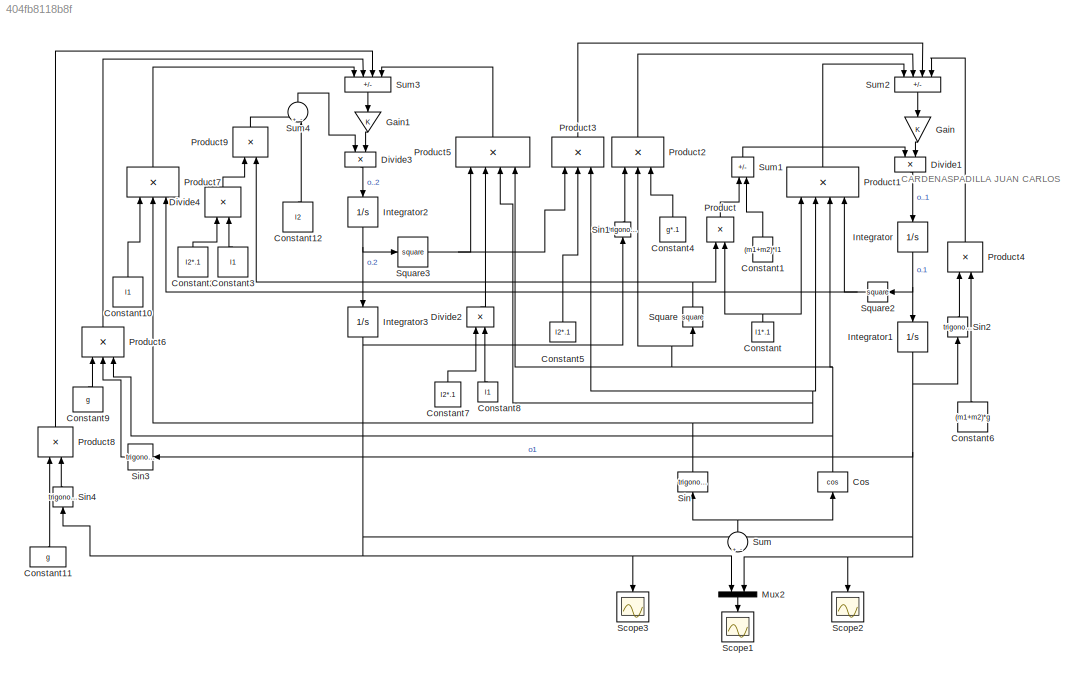
MODEL slx_404fb8118b8f
KIND model
CONFIG AbsTol = auto
CONFIG EnableMultiTasking = off
CONFIG FixedStep = auto
CONFIG MaxStep = auto
CONFIG MinStep = auto
CONFIG RelTol = 1e-3
CONFIG SampleTimeConstraint = Unconstrained
CONFIG SolverName = ode23
CONFIG StartTime = 0.0
CONFIG StopTime = 200
BLOCK [Constant] Constant
  NameLocation = right
  Value = l1*.1
BLOCK [Constant] Constant1
  NameLocation = right
  Value = (m1+m2)*l1
BLOCK [Constant] Constant10
  NameLocation = right
  Value = l1
BLOCK [Constant] Constant11
  NameLocation = right
  Value = g
BLOCK [Constant] Constant12
  NameLocation = right
  Value = l2
BLOCK [Constant] Constant2
  NameLocation = right
  Value = l2*.1
BLOCK [Constant] Constant3
  NameLocation = right
  Value = l1
BLOCK [Constant] Constant4
  NameLocation = right
  Value = g*.1
BLOCK [Constant] Constant5
  NameLocation = right
  Value = l2*.1
BLOCK [Constant] Constant6
  NameLocation = right
  Value = (m1+m2)*g
BLOCK [Constant] Constant7
  NameLocation = right
  Value = l2*.1
BLOCK [Constant] Constant8
  NameLocation = right
  Value = l1
BLOCK [Constant] Constant9
  NameLocation = right
  Value = g
BLOCK [Trigonometry] Cos
  NameLocation = right
  Operator = cos
BLOCK [Product] Divide1
  Inputs = /*
  NameLocation = left
BLOCK [Product] Divide2
  Inputs = */
  NameLocation = right
BLOCK [Product] Divide3
  Inputs = /*
  NameLocation = left
BLOCK [Product] Divide4
  Inputs = */
  NameLocation = right
BLOCK [Gain] Gain
  NameLocation = left
BLOCK [Gain] Gain1
  NameLocation = left
BLOCK [Integrator] Integrator
  NameLocation = left
BLOCK [Integrator] Integrator1
  NameLocation = left
BLOCK [Integrator] Integrator2
  NameLocation = left
BLOCK [Integrator] Integrator3
  InitialCondition = 0.610865
  NameLocation = left
BLOCK [Mux] Mux2
  DisplayOption = bar
  Inputs = 2
  NameLocation = left
BLOCK [Product] Product
  NameLocation = right
BLOCK [Product] Product1
  Inputs = 4
  NameLocation = right
BLOCK [Product] Product2
  Inputs = 3
  NameLocation = right
BLOCK [Product] Product3
  Inputs = 3
  NameLocation = right
BLOCK [Product] Product4
  NameLocation = right
BLOCK [Product] Product5
  Inputs = 4
  NameLocation = right
BLOCK [Product] Product6
  Inputs = 3
  NameLocation = right
BLOCK [Product] Product7
  Inputs = 3
  NameLocation = right
BLOCK [Product] Product8
  NameLocation = right
BLOCK [Product] Product9
  NameLocation = right
BLOCK [Scope] Scope1
  Floating = off
  NameLocation = left
  NumInputPorts = 1
  ScopeSpecificationString = Simulink.scopes.TimeScopeBlockCfg('CurrentConfiguration', extmgr.ConfigurationSet(extmgr.Configuration('Core','General UI',true),extmgr.Configuration('Core','Source UI',true),extmgr.Configuration('Sources','WiredSimulink',true,'DataLoggingVariableName','ScopeData1'),extmgr.Configuration('Visuals','Time Domain',true,'SerializedDisplays',{struct('MinYLimReal','-0.73519','MaxYLimReal','0.76043','YLab...<+1518ch>
BLOCK [Scope] Scope2
  Floating = off
  NameLocation = left
  NumInputPorts = 1
  ScopeSpecificationString = Simulink.scopes.TimeScopeBlockCfg('CurrentConfiguration', extmgr.ConfigurationSet(extmgr.Configuration('Core','General UI',true),extmgr.Configuration('Core','Source UI',true),extmgr.Configuration('Sources','WiredSimulink',true,'DataLoggingVariableName','ScopeData1'),extmgr.Configuration('Visuals','Time Domain',true,'SerializedDisplays',{struct('MinYLimReal','-0.3869','MaxYLimReal','0.3781','YLabel...<+1498ch>
BLOCK [Scope] Scope3
  Floating = off
  NameLocation = left
  NumInputPorts = 1
  ScopeSpecificationString = Simulink.scopes.TimeScopeBlockCfg('CurrentConfiguration', extmgr.ConfigurationSet(extmgr.Configuration('Core','General UI',true),extmgr.Configuration('Core','Source UI',true),extmgr.Configuration('Sources','WiredSimulink',true,'DataLoggingVariableName','ScopeData2'),extmgr.Configuration('Visuals','Time Domain',true,'SerializedDisplays',{struct('MinYLimReal','-0.73519','MaxYLimReal','0.76043','YLab...<+1513ch>
BLOCK [Trigonometry] Sin
  NameLocation = right
BLOCK [Trigonometry] Sin1
  NameLocation = right
BLOCK [Trigonometry] Sin2
  NameLocation = right
BLOCK [Trigonometry] Sin3
  NameLocation = top
BLOCK [Trigonometry] Sin4
  NameLocation = right
BLOCK [Math] Square
  NameLocation = right
  Operator = square
  RndMeth = Zero
  SignedPower = on
BLOCK [Math] Square2
  NameLocation = top
  Operator = square
  RndMeth = Zero
  SignedPower = on
BLOCK [Math] Square3
  Operator = square
  RndMeth = Zero
  SignedPower = on
BLOCK [Sum] Sum
  Inputs = +-
  NameLocation = right
BLOCK [Sum] Sum1
  IconShape = rectangular
  Inputs = +-
  NameLocation = right
BLOCK [Sum] Sum2
  IconShape = rectangular
  Inputs = ---+
  NameLocation = left
BLOCK [Sum] Sum3
  IconShape = rectangular
  Inputs = +-++
  NameLocation = left
BLOCK [Sum] Sum4
  Inputs = +-|
  NameLocation = right
ANNOTATION (root): CARDENASPADILLA JUAN CARLOS
LINE Constant10:1 -> Product7:1
LINE Constant11:1 -> Product8:1
LINE Constant12:1 -> Sum4:2
LINE Constant1:1 -> Sum1:2
LINE Constant2:1 -> Divide4:1
LINE Constant3:1 -> Divide4:2
LINE Constant4:1 -> Product2:3
LINE Constant5:1 -> Product3:2
LINE Constant6:1 -> Product4:2
LINE Constant7:1 -> Divide2:1
LINE Constant8:1 -> Divide2:2
LINE Constant9:1 -> Product6:1
NET Constant:1 -> Product1:1, Product:2
NET Cos:1 -> Product1:3, Product2:2, Product5:4, Product6:3, Square:1
LINE Divide1:1 -> Integrator:1
LINE Divide2:1 -> Product5:2
LINE Divide3:1 -> Integrator2:1
LINE Divide4:1 -> Product9:1
LINE Gain1:1 -> Divide3:2
LINE Gain:1 -> Divide1:2
NET Integrator1:1 -> Mux2:2, Scope2:1, Sin2:1, Sin3:1, Sum:2
NET Integrator2:1 -> Integrator3:1, Square3:1
NET Integrator3:1 -> Mux2:1, Scope3:1, Sin1:1, Sin4:1, Sum:1
NET Integrator:1 -> Integrator1:1, Square2:1
LINE Mux2:1 -> Scope1:1
LINE Product1:1 -> Sum2:1
LINE Product2:1 -> Sum2:2
LINE Product3:1 -> Sum2:3
LINE Product4:1 -> Sum2:4
LINE Product5:1 -> Sum3:4
LINE Product6:1 -> Sum3:2
LINE Product7:1 -> Sum3:1
LINE Product8:1 -> Sum3:3
LINE Product9:1 -> Sum4:1
LINE Product:1 -> Sum1:1
LINE Sin1:1 -> Product2:1
LINE Sin2:1 -> Product4:1
LINE Sin3:1 -> Product6:2
LINE Sin4:1 -> Product8:2
NET Sin:1 -> Product1:2, Product3:3, Product5:3, Product7:2
NET Square2:1 -> Product1:4, Product7:3
NET Square3:1 -> Product3:1, Product5:1
NET Square:1 -> Product9:2, Product:1
LINE Sum1:1 -> Divide1:1
LINE Sum2:1 -> Gain:1
LINE Sum3:1 -> Gain1:1
LINE Sum4:1 -> Divide3:1
NET Sum:1 -> Cos:1, Sin:1
note: NET lines group one-source signal fan-out (src -> all destinations, sorted); 1:1 wires keep LINE
